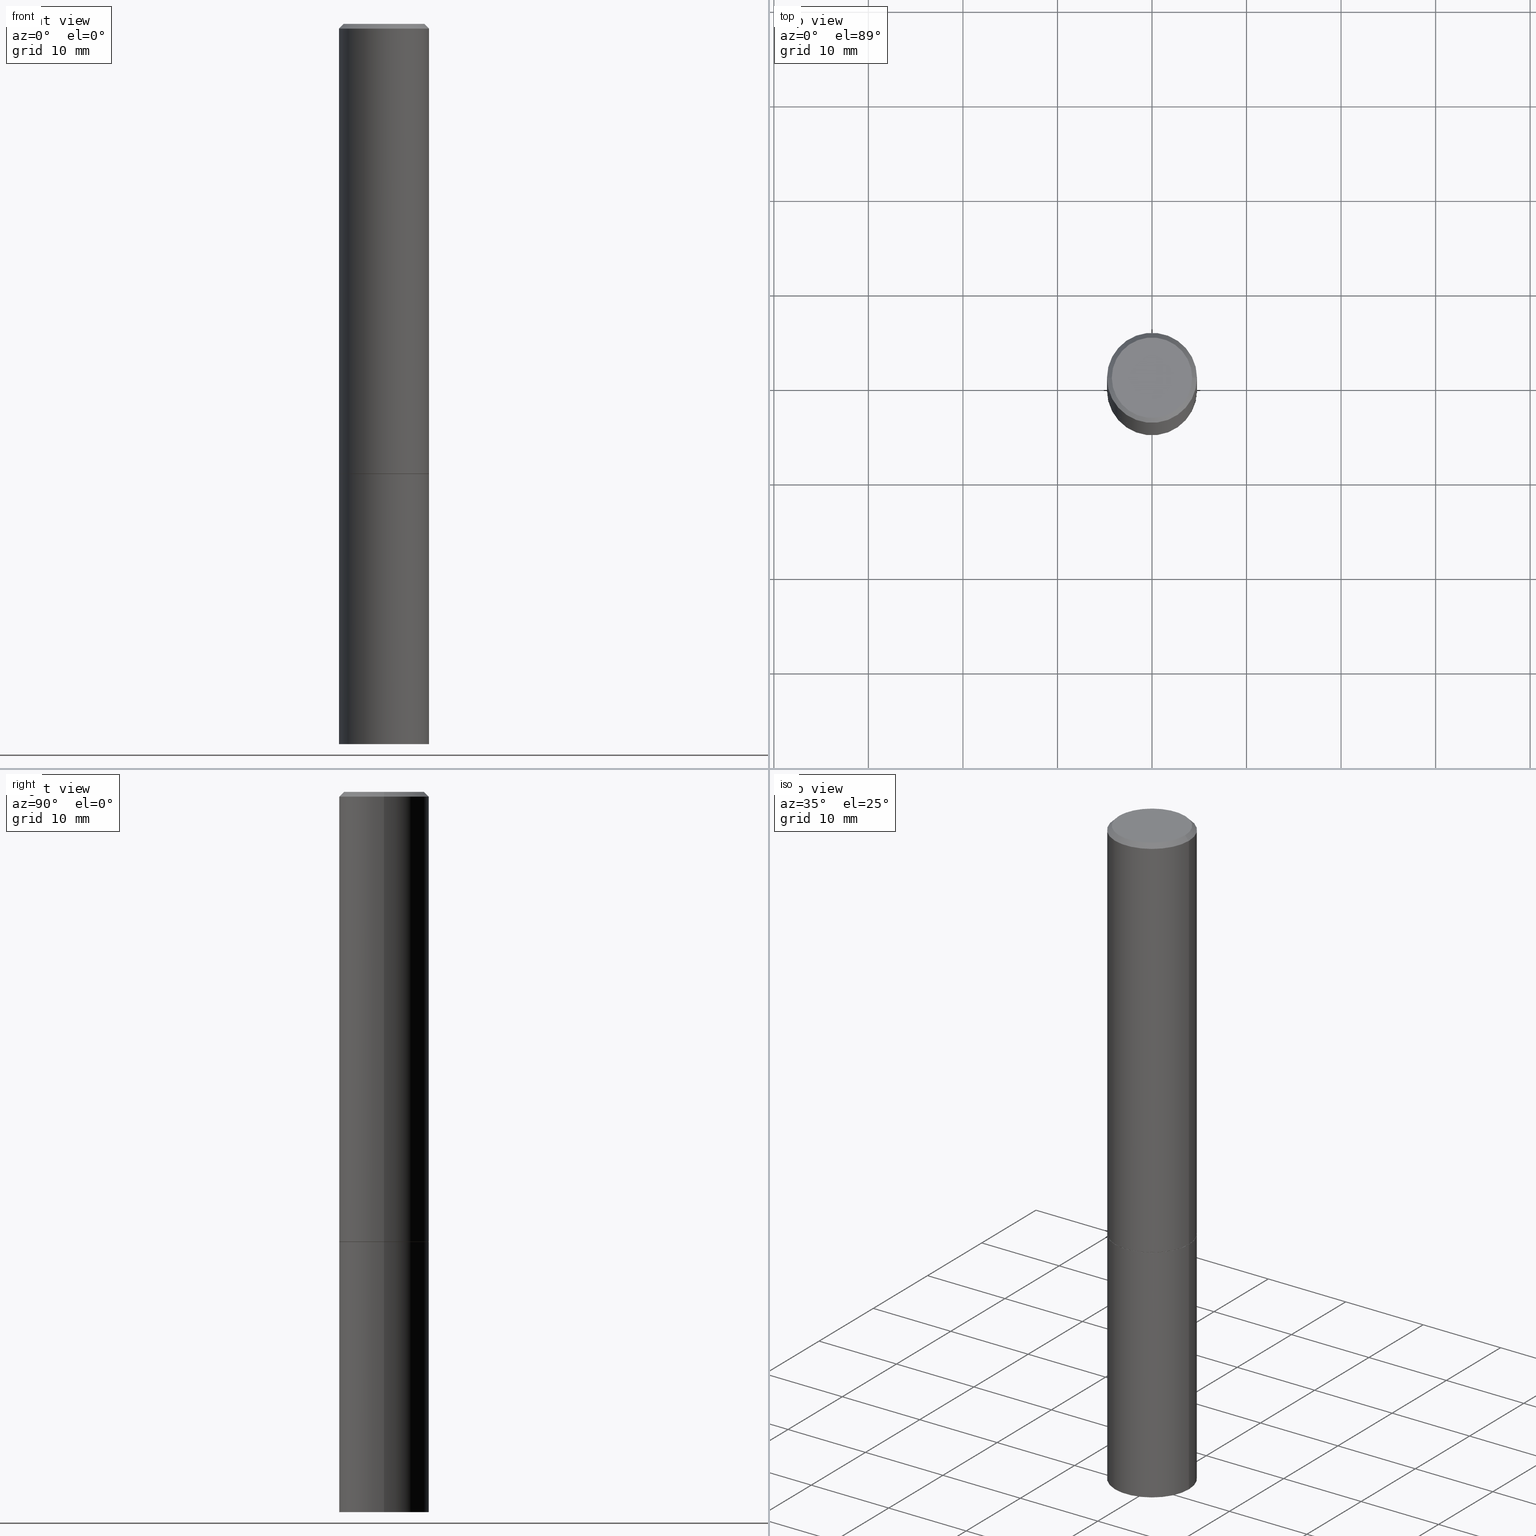
[diagram: canonical four-view strip — front | top / right | iso, engineering-drawing reading convention]
A machine part, canonical four-view strip (front | top / right | iso — engineering-drawing reading convention). The complete STEP part file that produces these views, byte-faithful:
ISO-10303-21;
HEADER;
FILE_DESCRIPTION (( 'STEP AP203' ),
    '1' );
FILE_NAME ('70478.STEP',
    '2024-02-29T02:47:19',
    ( '' ),
    ( '' ),
    'SwSTEP 2.0',
    'SolidWorks 2023',
    '' );
FILE_SCHEMA (( 'CONFIG_CONTROL_DESIGN' ));
ENDSEC;

DATA;
#1 = LINE ( 'NONE', #167, #325 ) ;
#2 = DIRECTION ( 'NONE',  ( 1.000000000000000000, -6.982962677686265922E-15, 4.876176775795935793E-29 ) ) ;
#3 = CC_DESIGN_PERSON_AND_ORGANIZATION_ASSIGNMENT ( #100, #17, ( #309 ) ) ;
#4 = FACE_OUTER_BOUND ( 'NONE', #172, .T. ) ;
#5 = AXIS2_PLACEMENT_3D ( 'NONE', #109, #310, #57 ) ;
#6 = APPLICATION_CONTEXT ( 'configuration controlled 3d designs of mechanical parts and assemblies' ) ;
#7 = LOCAL_TIME ( 21, 47, 19.00000000000000000, #73 ) ;
#8 = CARTESIAN_POINT ( 'NONE',  ( 4.585254011597131119E-29, -6.546527510330898707E-15, -1.875000000000000000 ) ) ;
#9 = DIRECTION ( 'NONE',  ( -1.000000000000000000, 6.982962677686265922E-15, -4.876176775795935793E-29 ) ) ;
#10 = CC_DESIGN_APPROVAL ( #132, ( #314 ) ) ;
#11 = CARTESIAN_POINT ( 'NONE',  ( 0.1875000000000000278, -1.309305502066175008E-15, 9.142831454617381013E-30 ) ) ;
#12 = ORIENTED_EDGE ( 'NONE', *, *, #257, .T. ) ;
#13 = ORIENTED_EDGE ( 'NONE', *, *, #120, .F. ) ;
#14 = ADVANCED_FACE ( 'NONE', ( #123 ), #153, .T. ) ;
#15 = DIRECTION ( 'NONE',  ( 1.000000000000000000, -6.982962677686269077E-15, 0.000000000000000000 ) ) ;
#16 = CONICAL_SURFACE ( 'NONE', #227, 0.1864999999999999714, 0.7853981633974653764 ) ;
#17 = PERSON_AND_ORGANIZATION_ROLE ( 'design_supplier' ) ;
#18 = EDGE_LOOP ( 'NONE', ( #289, #90, #218, #69 ) ) ;
#19 = APPROVAL_ROLE ( '' ) ;
#20 = DIRECTION ( 'NONE',  ( -2.445468806185136597E-29, 3.491481338843145583E-15, 1.000000000000000000 ) ) ;
#21 = APPROVAL_ROLE ( '' ) ;
#22 = DIRECTION ( 'NONE',  ( 1.000000000000000000, -6.982962677686261189E-15, 0.000000000000000000 ) ) ;
#23 = CALENDAR_DATE ( 2024, 28, 2 ) ;
#24 = DIRECTION ( 'NONE',  ( 1.000000000000000000, -6.982962677686269077E-15, 0.000000000000000000 ) ) ;
#25 = APPROVAL ( #75, 'UNSPECIFIED' ) ;
#26 = DATE_AND_TIME ( #23, #29 ) ;
#27 = VERTEX_POINT ( 'NONE', #213 ) ;
#28 = DIRECTION ( 'NONE',  ( 1.000000000000000000, -6.982962677686264344E-15, 0.000000000000000000 ) ) ;
#29 = LOCAL_TIME ( 21, 47, 19.00000000000000000, #128 ) ;
#30 = EDGE_CURVE ( 'NONE', #175, #191, #154, .T. ) ;
#31 = LINE ( 'NONE', #81, #249 ) ;
#32 = CONICAL_SURFACE ( 'NONE', #204, 0.1874999999999998335, 0.7853981633974471688 ) ;
#33 = DIRECTION ( 'NONE',  ( -1.000000000000000000, 6.982962677686265922E-15, -4.876176775795935793E-29 ) ) ;
#34 = ADVANCED_FACE ( 'NONE', ( #161 ), #364, .F. ) ;
#35 = ORIENTED_EDGE ( 'NONE', *, *, #87, .F. ) ;
#36 = VECTOR ( 'NONE', #222, 39.37007874015748143 ) ;
#37 = DIRECTION ( 'NONE',  ( 1.000000000000000000, -6.982962677686265922E-15, 4.876176775795935793E-29 ) ) ;
#38 = ORIENTED_EDGE ( 'NONE', *, *, #347, .T. ) ;
#39 = VERTEX_POINT ( 'NONE', #298 ) ;
#40 = DIRECTION ( 'NONE',  ( 1.000000000000000000, -6.982962677686261189E-15, 0.000000000000000000 ) ) ;
#41 = ORIENTED_EDGE ( 'NONE', *, *, #174, .T. ) ;
#42 = AXIS2_PLACEMENT_3D ( 'NONE', #55, #96, #47 ) ;
#43 = APPROVAL_DATE_TIME ( #332, #25 ) ;
#44 = ORIENTED_EDGE ( 'NONE', *, *, #281, .T. ) ;
#45 = EDGE_CURVE ( 'NONE', #101, #49, #194, .T. ) ;
#46 = APPLICATION_PROTOCOL_DEFINITION ( 'international standard', 'config_control_design', 1994, #351 ) ;
#47 = DIRECTION ( 'NONE',  ( -1.000000000000000000, 6.982962677686266711E-15, 0.000000000000000000 ) ) ;
#48 = SHAPE_DEFINITION_REPRESENTATION ( #252, #308 ) ;
#49 = VERTEX_POINT ( 'NONE', #76 ) ;
#50 = CIRCLE ( 'NONE', #138, 0.1864999999999999714 ) ;
#51 = ADVANCED_FACE ( 'NONE', ( #306 ), #290, .T. ) ;
#52 = CIRCLE ( 'NONE', #265, 0.1875000000000000278 ) ;
#53 = DIRECTION ( 'NONE',  ( -2.445468806185136597E-29, 3.491481338843145583E-15, 1.000000000000000000 ) ) ;
#54 = ORIENTED_EDGE ( 'NONE', *, *, #347, .F. ) ;
#55 = CARTESIAN_POINT ( 'NONE',  ( 4.890937612370292426E-31, -6.982962677686317493E-17, -0.02000000000000007674 ) ) ;
#56 = APPROVAL ( #239, 'UNSPECIFIED' ) ;
#57 = DIRECTION ( 'NONE',  ( 1.000000000000000000, -6.982962677686266711E-15, 4.876176775795936914E-29 ) ) ;
#58 = CARTESIAN_POINT ( 'NONE',  ( 4.585254011597131119E-29, -6.546527510330898707E-15, -1.875000000000000000 ) ) ;
#59 = CARTESIAN_POINT ( 'NONE',  ( 4.585254011597131119E-29, -6.546527510330898707E-15, -1.875000000000000000 ) ) ;
#60 = EDGE_CURVE ( 'NONE', #49, #27, #209, .T. ) ;
#61 = CIRCLE ( 'NONE', #149, 0.1875000000000000833 ) ;
#62 = DIRECTION ( 'NONE',  ( -2.445468806185136597E-29, 3.491481338843145583E-15, 1.000000000000000000 ) ) ;
#63 = PLANE ( 'NONE',  #97 ) ;
#64 = CC_DESIGN_PERSON_AND_ORGANIZATION_ASSIGNMENT ( #212, #241, ( #190 ) ) ;
#65 = CARTESIAN_POINT ( 'NONE',  ( 0.1875000000000000278, -7.855833012397073715E-15, -1.875000000000000000 ) ) ;
#66 = EDGE_LOOP ( 'NONE', ( #142, #146 ) ) ;
#67 = AXIS2_PLACEMENT_3D ( 'NONE', #140, #348, #9 ) ;
#68 = EDGE_LOOP ( 'NONE', ( #355, #263, #54, #170 ) ) ;
#69 = ORIENTED_EDGE ( 'NONE', *, *, #352, .T. ) ;
#70 = EDGE_CURVE ( 'NONE', #229, #240, #71, .T. ) ;
#71 = CIRCLE ( 'NONE', #341, 0.1874999999999998335 ) ;
#72 = CC_DESIGN_APPROVAL ( #56, ( #190 ) ) ;
#73 = COORDINATED_UNIVERSAL_TIME_OFFSET ( 5, 0, .BEHIND. ) ;
#74 = ORIENTED_EDGE ( 'NONE', *, *, #216, .T. ) ;
#75 = APPROVAL_STATUS ( 'not_yet_approved' ) ;
#76 = CARTESIAN_POINT ( 'NONE',  ( -0.1864999999999999714, -5.216066853790089465E-15, -1.875000000000000000 ) ) ;
#77 = DIRECTION ( 'NONE',  ( -2.445468806185136597E-29, 3.491481338843145583E-15, 1.000000000000000000 ) ) ;
#78 = COORDINATED_UNIVERSAL_TIME_OFFSET ( 5, 0, .BEHIND. ) ;
#79 = CYLINDRICAL_SURFACE ( 'NONE', #85, 0.1875000000000000278 ) ;
#80 = CARTESIAN_POINT ( 'NONE',  ( 4.585254011597131119E-29, -6.546527510330898707E-15, -1.875000000000000000 ) ) ;
#81 = CARTESIAN_POINT ( 'NONE',  ( 0.1874999999999998335, -1.356173001359024283E-15, -0.02000000000000007674 ) ) ;
#82 = DIRECTION ( 'NONE',  ( -2.445468806185136597E-29, 3.491481338843145583E-15, 1.000000000000000000 ) ) ;
#83 = CARTESIAN_POINT ( 'NONE',  ( -0.1874999999999998335, 1.239475875289310724E-15, -0.02000000000000007674 ) ) ;
#84 = LINE ( 'NONE', #199, #36 ) ;
#85 = AXIS2_PLACEMENT_3D ( 'NONE', #160, #82, #225 ) ;
#86 = DIRECTION ( 'NONE',  ( 1.000000000000000000, -6.982962677686264344E-15, 0.000000000000000000 ) ) ;
#87 = EDGE_CURVE ( 'NONE', #175, #321, #155, .T. ) ;
#88 = CARTESIAN_POINT ( 'NONE',  ( 4.585254011597131119E-29, -6.546527510330898707E-15, -1.875000000000000000 ) ) ;
#89 = ORIENTED_EDGE ( 'NONE', *, *, #168, .T. ) ;
#90 = ORIENTED_EDGE ( 'NONE', *, *, #216, .F. ) ;
#91 =( GEOMETRIC_REPRESENTATION_CONTEXT ( 3 ) GLOBAL_UNCERTAINTY_ASSIGNED_CONTEXT ( ( #107 ) ) GLOBAL_UNIT_ASSIGNED_CONTEXT ( ( #353, #270, #296 ) ) REPRESENTATION_CONTEXT ( 'NONE', 'WORKASPACE' ) );
#92 = ADVANCED_FACE ( 'NONE', ( #158 ), #215, .T. ) ;
#93 = DESIGN_CONTEXT ( 'detailed design', #6, 'design' ) ;
#94 = ORIENTED_EDGE ( 'NONE', *, *, #299, .T. ) ;
#95 = CALENDAR_DATE ( 2024, 28, 2 ) ;
#96 = DIRECTION ( 'NONE',  ( 2.445468806185136597E-29, -3.491481338843145583E-15, -1.000000000000000000 ) ) ;
#97 = AXIS2_PLACEMENT_3D ( 'NONE', #346, #291, #37 ) ;
#98 = DIRECTION ( 'NONE',  ( 1.000000000000000000, -6.982962677686266711E-15, 0.000000000000000000 ) ) ;
#99 = ADVANCED_FACE ( 'NONE', ( #301 ), #211, .T. ) ;
#100 = PERSON_AND_ORGANIZATION ( #231, #113 ) ;
#101 = VERTEX_POINT ( 'NONE', #129 ) ;
#102 = MECHANICAL_CONTEXT ( 'NONE', #351, 'mechanical' ) ;
#103 = MANIFOLD_SOLID_BREP ( 'Body-Move/Copy2[1]', #198 ) ;
#104 = FACE_OUTER_BOUND ( 'NONE', #323, .T. ) ;
#105 = CIRCLE ( 'NONE', #126, 0.1874999999999998335 ) ;
#106 = DIRECTION ( 'NONE',  ( 2.438088387897960049E-29, -3.491481338843145188E-15, -1.000000000000000000 ) ) ;
#107 = UNCERTAINTY_MEASURE_WITH_UNIT (LENGTH_MEASURE( 1.000000000000000082E-05 ), #353, 'distance_accuracy_value', 'NONE');
#108 = ADVANCED_FACE ( 'NONE', ( #104 ), #79, .T. ) ;
#109 = CARTESIAN_POINT ( 'NONE',  ( 0.000000000000000000, 0.000000000000000000, 0.000000000000000000 ) ) ;
#110 = DIRECTION ( 'NONE',  ( -2.445468806185136597E-29, 3.491481338843145583E-15, 1.000000000000000000 ) ) ;
#111 = CYLINDRICAL_SURFACE ( 'NONE', #302, 0.1875000000000000278 ) ;
#112 = CLOSED_SHELL ( 'NONE', ( #316, #14, #51, #180, #92, #99, #327, #136 ) ) ;
#113 = ORGANIZATION ( 'UNSPECIFIED', 'UNSPECIFIED', '' ) ;
#114 = EDGE_CURVE ( 'NONE', #234, #229, #31, .T. ) ;
#115 = PLANE ( 'NONE',  #141 ) ;
#116 = DIRECTION ( 'NONE',  ( 2.438088387897960049E-29, -3.491481338843145188E-15, -1.000000000000000000 ) ) ;
#117 = EDGE_CURVE ( 'NONE', #191, #261, #179, .T. ) ;
#118 = AXIS2_PLACEMENT_3D ( 'NONE', #8, #110, #134 ) ;
#119 = ORIENTED_EDGE ( 'NONE', *, *, #174, .F. ) ;
#120 = EDGE_CURVE ( 'NONE', #27, #240, #1, .T. ) ;
#121 = CIRCLE ( 'NONE', #188, 0.1875000000000000278 ) ;
#122 = CARTESIAN_POINT ( 'NONE',  ( 0.1875000000000000278, -1.178374951859561136E-14, -3.000000000000000444 ) ) ;
#123 = FACE_OUTER_BOUND ( 'NONE', #277, .T. ) ;
#124 = EDGE_CURVE ( 'NONE', #39, #240, #195, .T. ) ;
#125 = ORIENTED_EDGE ( 'NONE', *, *, #281, .F. ) ;
#126 = AXIS2_PLACEMENT_3D ( 'NONE', #201, #169, #262 ) ;
#127 = DIRECTION ( 'NONE',  ( -2.445468806185136597E-29, 3.491481338843145583E-15, 1.000000000000000000 ) ) ;
#128 = COORDINATED_UNIVERSAL_TIME_OFFSET ( 5, 0, .BEHIND. ) ;
#129 = CARTESIAN_POINT ( 'NONE',  ( 0.1864999999999999714, -7.848850049719387701E-15, -1.875000000000000000 ) ) ;
#130 = PERSON_AND_ORGANIZATION ( #231, #113 ) ;
#131 = EDGE_LOOP ( 'NONE', ( #13, #242, #202, #293 ) ) ;
#132 = APPROVAL ( #246, 'UNSPECIFIED' ) ;
#133 = VECTOR ( 'NONE', #248, 39.37007874015748143 ) ;
#134 = DIRECTION ( 'NONE',  ( 1.000000000000000000, -6.982962677686266711E-15, 0.000000000000000000 ) ) ;
#135 = DIRECTION ( 'NONE',  ( -2.445468806185136877E-29, 3.491481338843145188E-15, 1.000000000000000000 ) ) ;
#136 = ADVANCED_FACE ( 'NONE', ( #256 ), #115, .F. ) ;
#137 = CARTESIAN_POINT ( 'NONE',  ( -0.1874999999999998335, 1.239475875289310724E-15, -0.02000000000000007674 ) ) ;
#138 = AXIS2_PLACEMENT_3D ( 'NONE', #58, #223, #196 ) ;
#139 = LINE ( 'NONE', #193, #233 ) ;
#140 = CARTESIAN_POINT ( 'NONE',  ( 1.309305502066248372E-15, 0.1874999999999895361, -3.000000000000000888 ) ) ;
#141 = AXIS2_PLACEMENT_3D ( 'NONE', #344, #116, #33 ) ;
#142 = ORIENTED_EDGE ( 'NONE', *, *, #45, .F. ) ;
#143 = DIRECTION ( 'NONE',  ( -2.445468806185136597E-29, 3.491481338843145583E-15, 1.000000000000000000 ) ) ;
#144 = ORIENTED_EDGE ( 'NONE', *, *, #250, .F. ) ;
#145 = FACE_OUTER_BOUND ( 'NONE', #68, .T. ) ;
#146 = ORIENTED_EDGE ( 'NONE', *, *, #245, .F. ) ;
#147 = CC_DESIGN_PERSON_AND_ORGANIZATION_ASSIGNMENT ( #157, #159, ( #349 ) ) ;
#148 = FACE_OUTER_BOUND ( 'NONE', #266, .T. ) ;
#149 = AXIS2_PLACEMENT_3D ( 'NONE', #236, #143, #86 ) ;
#150 = PERSON_AND_ORGANIZATION_ROLE ( 'creator' ) ;
#151 = ORIENTED_EDGE ( 'NONE', *, *, #120, .T. ) ;
#152 = PERSON_AND_ORGANIZATION ( #231, #113 ) ;
#153 = CYLINDRICAL_SURFACE ( 'NONE', #259, 0.1874999999999999722 ) ;
#154 = LINE ( 'NONE', #244, #133 ) ;
#155 = CIRCLE ( 'NONE', #187, 0.1875000000000000278 ) ;
#156 = CC_DESIGN_APPROVAL ( #25, ( #309 ) ) ;
#157 = PERSON_AND_ORGANIZATION ( #231, #113 ) ;
#158 = FACE_OUTER_BOUND ( 'NONE', #131, .T. ) ;
#159 = PERSON_AND_ORGANIZATION_ROLE ( 'design_owner' ) ;
#160 = CARTESIAN_POINT ( 'NONE',  ( 0.000000000000000000, 0.000000000000000000, 0.000000000000000000 ) ) ;
#161 = FACE_OUTER_BOUND ( 'NONE', #176, .T. ) ;
#162 = VECTOR ( 'NONE', #165, 39.37007874015748143 ) ;
#163 = APPROVAL_PERSON_ORGANIZATION ( #181, #132, #19 ) ;
#164 = FACE_OUTER_BOUND ( 'NONE', #18, .T. ) ;
#165 = DIRECTION ( 'NONE',  ( -0.7071067811865466846, 2.468850131082247989E-15, -0.7071067811865483499 ) ) ;
#166 = DIRECTION ( 'NONE',  ( -2.445468806185136877E-29, 3.491481338843145188E-15, 1.000000000000000000 ) ) ;
#167 = CARTESIAN_POINT ( 'NONE',  ( -0.1874999999999999722, 1.332267629550187651E-15, -9.223003294227946589E-30 ) ) ;
#168 = EDGE_CURVE ( 'NONE', #101, #205, #84, .T. ) ;
#169 = DIRECTION ( 'NONE',  ( -2.445468806185136597E-29, 3.491481338843145583E-15, 1.000000000000000000 ) ) ;
#170 = ORIENTED_EDGE ( 'NONE', *, *, #168, .F. ) ;
#171 = DIRECTION ( 'NONE',  ( -2.445468806185136597E-29, 3.491481338843145583E-15, 1.000000000000000000 ) ) ;
#172 = EDGE_LOOP ( 'NONE', ( #94, #333, #295, #125 ) ) ;
#173 = LOCAL_TIME ( 21, 47, 19.00000000000000000, #268 ) ;
#174 = EDGE_CURVE ( 'NONE', #234, #39, #243, .T. ) ;
#175 = VERTEX_POINT ( 'NONE', #284 ) ;
#176 = EDGE_LOOP ( 'NONE', ( #12, #358 ) ) ;
#177 = DIRECTION ( 'NONE',  ( 1.000000000000000000, 0.000000000000000000, 0.000000000000000000 ) ) ;
#178 = ORIENTED_EDGE ( 'NONE', *, *, #245, .T. ) ;
#179 = CIRCLE ( 'NONE', #118, 0.1875000000000000278 ) ;
#180 = ADVANCED_FACE ( 'NONE', ( #164 ), #32, .T. ) ;
#181 = PERSON_AND_ORGANIZATION ( #231, #113 ) ;
#182 = ORIENTED_EDGE ( 'NONE', *, *, #70, .T. ) ;
#183 = CALENDAR_DATE ( 2024, 28, 2 ) ;
#184 = DIRECTION ( 'NONE',  ( -2.445468806185136597E-29, 3.491481338843145583E-15, 1.000000000000000000 ) ) ;
#185 = DIRECTION ( 'NONE',  ( 0.000000000000000000, 0.000000000000000000, 1.000000000000000000 ) ) ;
#186 = DIRECTION ( 'NONE',  ( 1.000000000000000000, -6.982962677686266711E-15, 4.876176775795935793E-29 ) ) ;
#187 = AXIS2_PLACEMENT_3D ( 'NONE', #329, #184, #22 ) ;
#188 = AXIS2_PLACEMENT_3D ( 'NONE', #59, #287, #258 ) ;
#189 = PERSON_AND_ORGANIZATION ( #231, #113 ) ;
#190 = PRODUCT_DEFINITION ( 'UNKNOWN', '', #309, #93 ) ;
#191 = VERTEX_POINT ( 'NONE', #342 ) ;
#192 = CARTESIAN_POINT ( 'NONE',  ( 0.000000000000000000, 0.000000000000000000, 0.000000000000000000 ) ) ;
#193 = CARTESIAN_POINT ( 'NONE',  ( 0.1874999999999999722, -1.309305502066174811E-15, 9.142831454617378210E-30 ) ) ;
#194 = CIRCLE ( 'NONE', #219, 0.1864999999999999714 ) ;
#195 = LINE ( 'NONE', #137, #162 ) ;
#196 = DIRECTION ( 'NONE',  ( 1.000000000000000000, -6.982962677686269077E-15, 0.000000000000000000 ) ) ;
#197 = DIRECTION ( 'NONE',  ( -2.445468806185136597E-29, 3.491481338843145583E-15, 1.000000000000000000 ) ) ;
#198 = CLOSED_SHELL ( 'NONE', ( #238, #311, #34, #108 ) ) ;
#199 = CARTESIAN_POINT ( 'NONE',  ( 0.1864999999999999714, -7.848850049719387701E-15, -1.875000000000000000 ) ) ;
#200 = AXIS2_PLACEMENT_3D ( 'NONE', #275, #185, #177 ) ;
#201 = CARTESIAN_POINT ( 'NONE',  ( 4.890937612370292426E-31, -6.982962677686317493E-17, -0.02000000000000007674 ) ) ;
#202 = ORIENTED_EDGE ( 'NONE', *, *, #210, .T. ) ;
#203 = EDGE_LOOP ( 'NONE', ( #74, #41 ) ) ;
#204 = AXIS2_PLACEMENT_3D ( 'NONE', #283, #251, #313 ) ;
#205 = VERTEX_POINT ( 'NONE', #343 ) ;
#206 = DIRECTION ( 'NONE',  ( -2.445468806185136597E-29, 3.491481338843145583E-15, 1.000000000000000000 ) ) ;
#207 = LINE ( 'NONE', #11, #303 ) ;
#208 = DATE_TIME_ROLE ( 'classification_date' ) ;
#209 = LINE ( 'NONE', #362, #319 ) ;
#210 = EDGE_CURVE ( 'NONE', #205, #229, #139, .T. ) ;
#211 = CONICAL_SURFACE ( 'NONE', #279, 0.1864999999999999714, 0.7853981633974653764 ) ;
#212 = PERSON_AND_ORGANIZATION ( #231, #113 ) ;
#213 = CARTESIAN_POINT ( 'NONE',  ( -0.1875000000000000555, -1.974165198334270073E-15, -1.874000000000000110 ) ) ;
#214 = APPROVAL_DATE_TIME ( #26, #56 ) ;
#215 = CYLINDRICAL_SURFACE ( 'NONE', #264, 0.1874999999999999722 ) ;
#216 = EDGE_CURVE ( 'NONE', #39, #234, #335, .T. ) ;
#217 = PERSON_AND_ORGANIZATION_ROLE ( 'classification_officer' ) ;
#218 = ORIENTED_EDGE ( 'NONE', *, *, #124, .T. ) ;
#219 = AXIS2_PLACEMENT_3D ( 'NONE', #80, #247, #305 ) ;
#220 = AXIS2_PLACEMENT_3D ( 'NONE', #312, #197, #28 ) ;
#221 = CALENDAR_DATE ( 2024, 28, 2 ) ;
#222 = DIRECTION ( 'NONE',  ( 0.7071067811865595631, -2.468850131082382884E-15, 0.7071067811865354713 ) ) ;
#223 = DIRECTION ( 'NONE',  ( -2.445468806185136597E-29, 3.491481338843145583E-15, 1.000000000000000000 ) ) ;
#224 = DIRECTION ( 'NONE',  ( 1.000000000000000000, -6.982962677686266711E-15, 4.876176775795936914E-29 ) ) ;
#225 = DIRECTION ( 'NONE',  ( 1.000000000000000000, -6.982962677686265922E-15, 4.876176775795935793E-29 ) ) ;
#226 = FACE_OUTER_BOUND ( 'NONE', #66, .T. ) ;
#227 = AXIS2_PLACEMENT_3D ( 'NONE', #88, #171, #15 ) ;
#228 = EDGE_LOOP ( 'NONE', ( #269, #178, #89, #144 ) ) ;
#229 = VERTEX_POINT ( 'NONE', #282 ) ;
#230 = MANIFOLD_SOLID_BREP ( 'Body-Move/Copy2[2]', #112 ) ;
#231 = PERSON ( 'UNSPECIFIED', 'UNSPECIFIED', 'UNSPECIFIED', ('UNSPECIFIED'), ('UNSPECIFIED'), ('UNSPECIFIED') ) ;
#232 = LENGTH_MEASURE_WITH_UNIT ( LENGTH_MEASURE( 0.02539999999999999897 ), #320 );
#233 = VECTOR ( 'NONE', #135, 39.37007874015748143 ) ;
#234 = VERTEX_POINT ( 'NONE', #253 ) ;
#235 = LOCAL_TIME ( 21, 47, 19.00000000000000000, #363 ) ;
#236 = CARTESIAN_POINT ( 'NONE',  ( 4.582808542790945516E-29, -6.543036028992054911E-15, -1.874000000000000110 ) ) ;
#237 = ORIENTED_EDGE ( 'NONE', *, *, #210, .F. ) ;
#238 = ADVANCED_FACE ( 'NONE', ( #4 ), #111, .T. ) ;
#239 = APPROVAL_STATUS ( 'not_yet_approved' ) ;
#240 = VERTEX_POINT ( 'NONE', #83 ) ;
#241 = PERSON_AND_ORGANIZATION_ROLE ( 'creator' ) ;
#242 = ORIENTED_EDGE ( 'NONE', *, *, #250, .T. ) ;
#243 = CIRCLE ( 'NONE', #5, 0.1674999999999998157 ) ;
#244 = CARTESIAN_POINT ( 'NONE',  ( -0.1875000000000000278, 1.332267629550188046E-15, -9.223003294227947991E-30 ) ) ;
#245 = EDGE_CURVE ( 'NONE', #49, #101, #50, .T. ) ;
#246 = APPROVAL_STATUS ( 'not_yet_approved' ) ;
#247 = DIRECTION ( 'NONE',  ( -2.445468806185136597E-29, 3.491481338843145583E-15, 1.000000000000000000 ) ) ;
#248 = DIRECTION ( 'NONE',  ( -2.445468806185136877E-29, 3.491481338843145188E-15, 1.000000000000000000 ) ) ;
#249 = VECTOR ( 'NONE', #340, 39.37007874015748143 ) ;
#250 = EDGE_CURVE ( 'NONE', #27, #205, #286, .T. ) ;
#251 = DIRECTION ( 'NONE',  ( 2.445468806185136597E-29, -3.491481338843145583E-15, -1.000000000000000000 ) ) ;
#252 = PRODUCT_DEFINITION_SHAPE ( 'NONE', 'NONE',  #190 ) ;
#253 = CARTESIAN_POINT ( 'NONE',  ( 0.1674999999999998157, -1.252653207992877105E-15, 8.469775550109232378E-30 ) ) ;
#254 = CARTESIAN_POINT ( 'NONE',  ( 0.000000000000000000, 0.000000000000000000, 0.000000000000000000 ) ) ;
#255 = APPROVAL_PERSON_ORGANIZATION ( #189, #56, #356 ) ;
#256 = FACE_OUTER_BOUND ( 'NONE', #203, .T. ) ;
#257 = EDGE_CURVE ( 'NONE', #261, #191, #121, .T. ) ;
#258 = DIRECTION ( 'NONE',  ( 1.000000000000000000, -6.982962677686266711E-15, 0.000000000000000000 ) ) ;
#259 = AXIS2_PLACEMENT_3D ( 'NONE', #192, #127, #360 ) ;
#260 = CC_DESIGN_PERSON_AND_ORGANIZATION_ASSIGNMENT ( #130, #150, ( #309 ) ) ;
#261 = VERTEX_POINT ( 'NONE', #65 ) ;
#262 = DIRECTION ( 'NONE',  ( 1.000000000000000000, -6.982962677686266711E-15, 0.000000000000000000 ) ) ;
#263 = ORIENTED_EDGE ( 'NONE', *, *, #60, .T. ) ;
#264 = AXIS2_PLACEMENT_3D ( 'NONE', #331, #77, #186 ) ;
#265 = AXIS2_PLACEMENT_3D ( 'NONE', #294, #206, #40 ) ;
#266 = EDGE_LOOP ( 'NONE', ( #350, #35 ) ) ;
#267 = PRODUCT_RELATED_PRODUCT_CATEGORY ( 'detail', '', ( #349 ) ) ;
#268 = COORDINATED_UNIVERSAL_TIME_OFFSET ( 5, 0, .BEHIND. ) ;
#269 = ORIENTED_EDGE ( 'NONE', *, *, #60, .F. ) ;
#270 =( NAMED_UNIT ( * ) PLANE_ANGLE_UNIT ( ) SI_UNIT ( $, .RADIAN. ) );
#271 = CARTESIAN_POINT ( 'NONE',  ( 4.890937612370292426E-31, -6.982962677686317493E-17, -0.02000000000000007674 ) ) ;
#272 = DATE_AND_TIME ( #221, #7 ) ;
#273 = CARTESIAN_POINT ( 'NONE',  ( 1.309305502066220959E-15, 0.1874999999999934497, -1.875000000000000666 ) ) ;
#274 = CC_DESIGN_SECURITY_CLASSIFICATION ( #314, ( #309 ) ) ;
#275 = CARTESIAN_POINT ( 'NONE',  ( 0.000000000000000000, 0.000000000000000000, 0.000000000000000000 ) ) ;
#276 = CARTESIAN_POINT ( 'NONE',  ( 4.585254011597131119E-29, -6.546527510330898707E-15, -1.875000000000000000 ) ) ;
#277 = EDGE_LOOP ( 'NONE', ( #38, #151, #354, #237 ) ) ;
#278 = DIRECTION ( 'NONE',  ( -1.000000000000000000, 6.982962677686265922E-15, -4.876176775795935793E-29 ) ) ;
#279 = AXIS2_PLACEMENT_3D ( 'NONE', #276, #53, #24 ) ;
#280 = LOCAL_TIME ( 21, 47, 19.00000000000000000, #78 ) ;
#281 = EDGE_CURVE ( 'NONE', #321, #261, #207, .T. ) ;
#282 = CARTESIAN_POINT ( 'NONE',  ( 0.1874999999999998335, -1.356173001359024283E-15, -0.02000000000000007674 ) ) ;
#283 = CARTESIAN_POINT ( 'NONE',  ( 4.890937612370292426E-31, -6.982962677686317493E-17, -0.02000000000000007674 ) ) ;
#284 = CARTESIAN_POINT ( 'NONE',  ( -0.1875000000000000278, -7.178218133879978893E-15, -3.000000000000000444 ) ) ;
#285 = AXIS2_PLACEMENT_3D ( 'NONE', #273, #106, #278 ) ;
#286 = CIRCLE ( 'NONE', #220, 0.1875000000000000833 ) ;
#287 = DIRECTION ( 'NONE',  ( -2.445468806185136597E-29, 3.491481338843145583E-15, 1.000000000000000000 ) ) ;
#288 = PLANE ( 'NONE',  #67 ) ;
#289 = ORIENTED_EDGE ( 'NONE', *, *, #114, .F. ) ;
#290 = CONICAL_SURFACE ( 'NONE', #42, 0.1874999999999998335, 0.7853981633974471688 ) ;
#291 = DIRECTION ( 'NONE',  ( -2.438088387897960049E-29, 3.491481338843145188E-15, 1.000000000000000000 ) ) ;
#292 = EDGE_LOOP ( 'NONE', ( #119, #338, #182, #318 ) ) ;
#293 = ORIENTED_EDGE ( 'NONE', *, *, #352, .F. ) ;
#294 = CARTESIAN_POINT ( 'NONE',  ( 7.336406418555409790E-29, -1.047444401652943635E-14, -3.000000000000000444 ) ) ;
#295 = ORIENTED_EDGE ( 'NONE', *, *, #257, .F. ) ;
#296 =( NAMED_UNIT ( * ) SI_UNIT ( $, .STERADIAN. ) SOLID_ANGLE_UNIT ( ) );
#297 = ORIENTED_EDGE ( 'NONE', *, *, #117, .F. ) ;
#298 = CARTESIAN_POINT ( 'NONE',  ( -0.1674999999999998157, 1.204561061900879469E-15, -8.301862719484101980E-30 ) ) ;
#299 = EDGE_CURVE ( 'NONE', #321, #175, #52, .T. ) ;
#300 = APPROVAL_DATE_TIME ( #304, #132 ) ;
#301 = FACE_OUTER_BOUND ( 'NONE', #228, .T. ) ;
#302 = AXIS2_PLACEMENT_3D ( 'NONE', #315, #62, #2 ) ;
#303 = VECTOR ( 'NONE', #317, 39.37007874015748143 ) ;
#304 = DATE_AND_TIME ( #183, #235 ) ;
#305 = DIRECTION ( 'NONE',  ( 1.000000000000000000, -6.982962677686269077E-15, 0.000000000000000000 ) ) ;
#306 = FACE_OUTER_BOUND ( 'NONE', #292, .T. ) ;
#307 = DIRECTION ( 'NONE',  ( -2.445468806185136597E-29, 3.491481338843145583E-15, 1.000000000000000000 ) ) ;
#308 = ADVANCED_BREP_SHAPE_REPRESENTATION ( '70478', ( #103, #230, #200 ), #91 ) ;
#309 = PRODUCT_DEFINITION_FORMATION_WITH_SPECIFIED_SOURCE ( 'ANY', '', #349, .NOT_KNOWN. ) ;
#310 = DIRECTION ( 'NONE',  ( -2.445468806185136597E-29, 3.491481338843145583E-15, 1.000000000000000000 ) ) ;
#311 = ADVANCED_FACE ( 'NONE', ( #148 ), #288, .T. ) ;
#312 = CARTESIAN_POINT ( 'NONE',  ( 4.582808542790945516E-29, -6.543036028992054911E-15, -1.874000000000000110 ) ) ;
#313 = DIRECTION ( 'NONE',  ( -1.000000000000000000, 6.982962677686266711E-15, 0.000000000000000000 ) ) ;
#314 = SECURITY_CLASSIFICATION ( '', '', #330 ) ;
#315 = CARTESIAN_POINT ( 'NONE',  ( 0.000000000000000000, 0.000000000000000000, 0.000000000000000000 ) ) ;
#316 = ADVANCED_FACE ( 'NONE', ( #145 ), #16, .T. ) ;
#317 = DIRECTION ( 'NONE',  ( -2.445468806185136877E-29, 3.491481338843145188E-15, 1.000000000000000000 ) ) ;
#318 = ORIENTED_EDGE ( 'NONE', *, *, #124, .F. ) ;
#319 = VECTOR ( 'NONE', #326, 39.37007874015748143 ) ;
#320 =( LENGTH_UNIT ( ) NAMED_UNIT ( * ) SI_UNIT ( $, .METRE. ) );
#321 = VERTEX_POINT ( 'NONE', #122 ) ;
#322 = CC_DESIGN_PERSON_AND_ORGANIZATION_ASSIGNMENT ( #152, #217, ( #314 ) ) ;
#323 = EDGE_LOOP ( 'NONE', ( #324, #366, #44, #297 ) ) ;
#324 = ORIENTED_EDGE ( 'NONE', *, *, #30, .F. ) ;
#325 = VECTOR ( 'NONE', #166, 39.37007874015748143 ) ;
#326 = DIRECTION ( 'NONE',  ( -0.7071067811865595631, 7.493145998870398336E-15, 0.7071067811865354713 ) ) ;
#327 = ADVANCED_FACE ( 'NONE', ( #226 ), #63, .F. ) ;
#328 = APPLICATION_PROTOCOL_DEFINITION ( 'international standard', 'config_control_design', 1994, #6 ) ;
#329 = CARTESIAN_POINT ( 'NONE',  ( 7.336406418555409790E-29, -1.047444401652943635E-14, -3.000000000000000444 ) ) ;
#330 = SECURITY_CLASSIFICATION_LEVEL ( 'unclassified' ) ;
#331 = CARTESIAN_POINT ( 'NONE',  ( 0.000000000000000000, 0.000000000000000000, 0.000000000000000000 ) ) ;
#332 = DATE_AND_TIME ( #361, #280 ) ;
#333 = ORIENTED_EDGE ( 'NONE', *, *, #30, .T. ) ;
#334 = AXIS2_PLACEMENT_3D ( 'NONE', #254, #307, #224 ) ;
#335 = CIRCLE ( 'NONE', #334, 0.1674999999999998157 ) ;
#336 = DATE_TIME_ROLE ( 'creation_date' ) ;
#337 = CC_DESIGN_DATE_AND_TIME_ASSIGNMENT ( #272, #336, ( #190 ) ) ;
#338 = ORIENTED_EDGE ( 'NONE', *, *, #114, .T. ) ;
#339 = DIMENSIONAL_EXPONENTS ( 1.000000000000000000, 0.000000000000000000, 0.000000000000000000, 0.000000000000000000, 0.000000000000000000, 0.000000000000000000, 0.000000000000000000 ) ;
#340 = DIRECTION ( 'NONE',  ( 0.7071067811865466846, -7.319954787623252890E-15, -0.7071067811865483499 ) ) ;
#341 = AXIS2_PLACEMENT_3D ( 'NONE', #271, #20, #98 ) ;
#342 = CARTESIAN_POINT ( 'NONE',  ( -0.1875000000000000278, -7.178218133879978893E-15, -1.875000000000000000 ) ) ;
#343 = CARTESIAN_POINT ( 'NONE',  ( 0.1875000000000000833, -7.852341531058230708E-15, -1.874000000000000110 ) ) ;
#344 = CARTESIAN_POINT ( 'NONE',  ( 1.169646248512448412E-15, 0.1674999999999998157, -5.848231242562262767E-16 ) ) ;
#345 = APPROVAL_PERSON_ORGANIZATION ( #365, #25, #21 ) ;
#346 = CARTESIAN_POINT ( 'NONE',  ( 4.585254011597131119E-29, -6.546527510330898707E-15, -1.875000000000000000 ) ) ;
#347 = EDGE_CURVE ( 'NONE', #205, #27, #61, .T. ) ;
#348 = DIRECTION ( 'NONE',  ( 2.438088387897960049E-29, -3.491481338843145188E-15, -1.000000000000000000 ) ) ;
#349 = PRODUCT ( '70478', '70478', '', ( #102 ) ) ;
#350 = ORIENTED_EDGE ( 'NONE', *, *, #299, .F. ) ;
#351 = APPLICATION_CONTEXT ( 'configuration controlled 3d designs of mechanical parts and assemblies' ) ;
#352 = EDGE_CURVE ( 'NONE', #240, #229, #105, .T. ) ;
#353 =( CONVERSION_BASED_UNIT ( 'INCH', #232 ) LENGTH_UNIT ( ) NAMED_UNIT ( #339 ) );
#354 = ORIENTED_EDGE ( 'NONE', *, *, #70, .F. ) ;
#355 = ORIENTED_EDGE ( 'NONE', *, *, #45, .T. ) ;
#356 = APPROVAL_ROLE ( '' ) ;
#357 = CC_DESIGN_DATE_AND_TIME_ASSIGNMENT ( #359, #208, ( #314 ) ) ;
#358 = ORIENTED_EDGE ( 'NONE', *, *, #117, .T. ) ;
#359 = DATE_AND_TIME ( #95, #173 ) ;
#360 = DIRECTION ( 'NONE',  ( 1.000000000000000000, -6.982962677686266711E-15, 4.876176775795935793E-29 ) ) ;
#361 = CALENDAR_DATE ( 2024, 28, 2 ) ;
#362 = CARTESIAN_POINT ( 'NONE',  ( -0.1864999999999999714, -5.221365308138311867E-15, -1.875000000000000000 ) ) ;
#363 = COORDINATED_UNIVERSAL_TIME_OFFSET ( 5, 0, .BEHIND. ) ;
#364 = PLANE ( 'NONE',  #285 ) ;
#365 = PERSON_AND_ORGANIZATION ( #231, #113 ) ;
#366 = ORIENTED_EDGE ( 'NONE', *, *, #87, .T. ) ;
ENDSEC;
END-ISO-10303-21;
